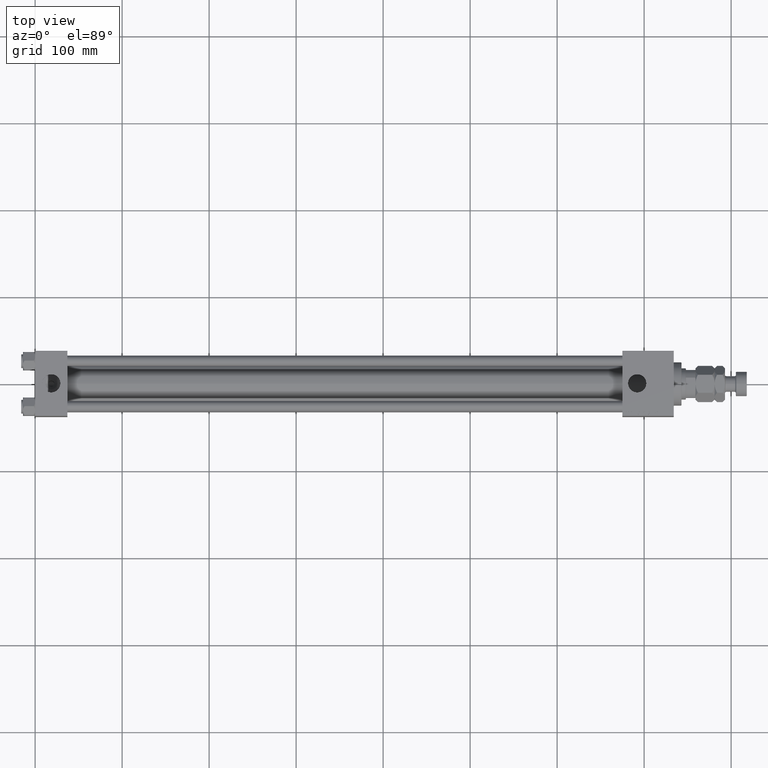
[diagram: clean part render]
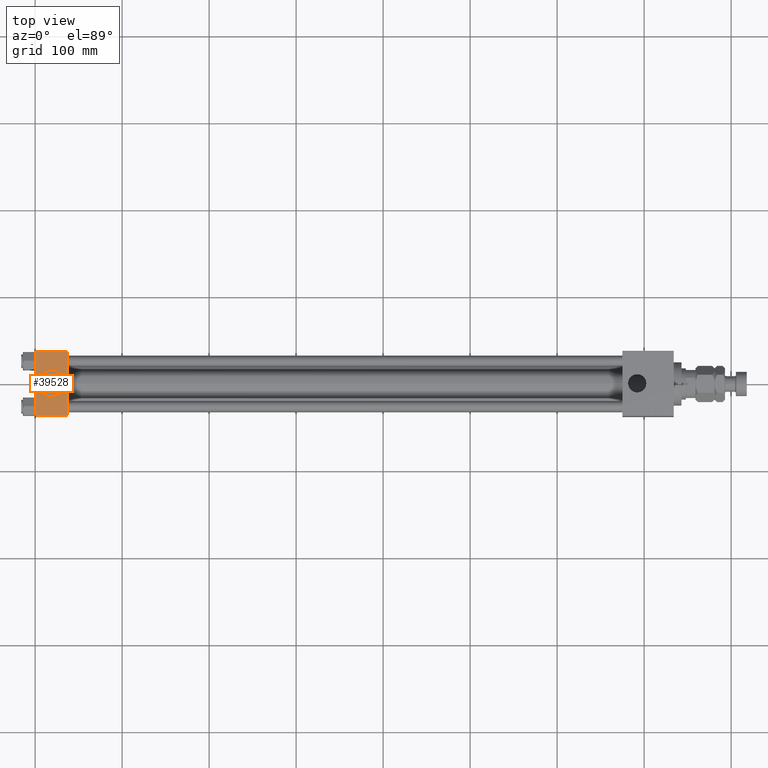
[diagram: same view with one face highlighted and labeled with its STEP entity id]
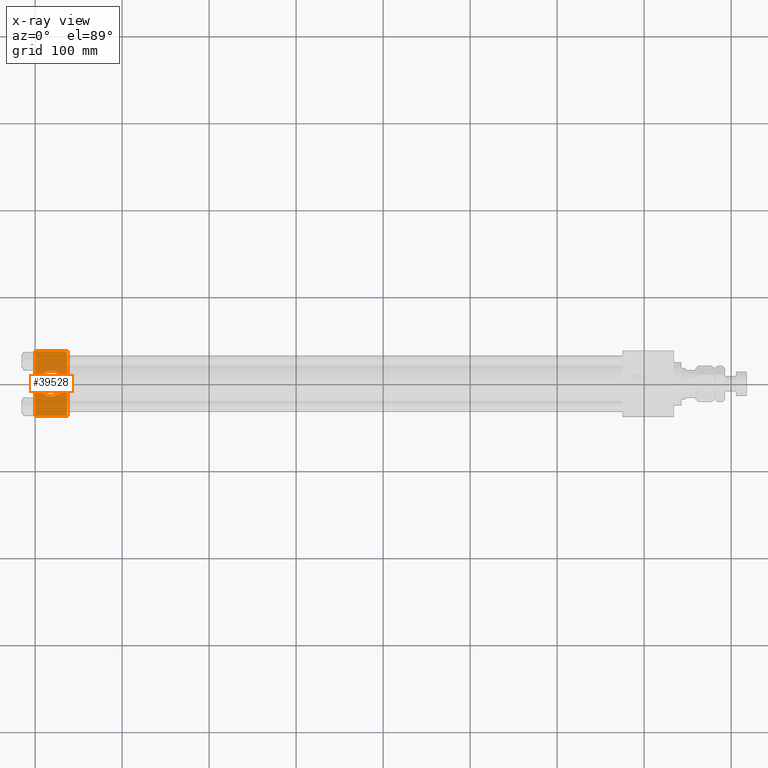
[diagram: x-ray of the same camera — body ghosted, the highlighted face saturated]
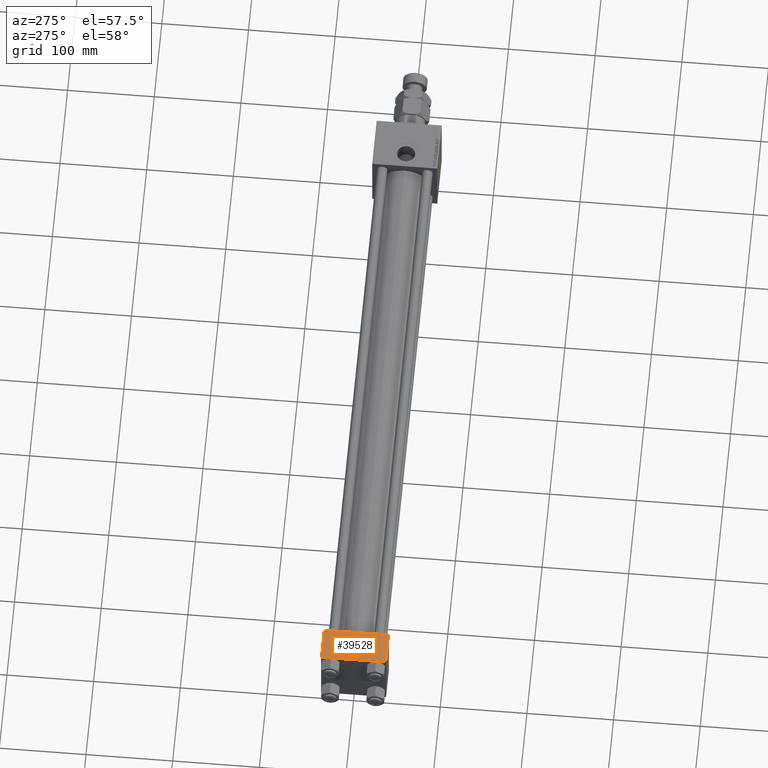
[diagram: same view with one face highlighted and labeled with its STEP entity id]
A machine part, top view. The second image highlights one B-rep face of the part: STEP entity #39528.
The next image is the same camera in x-ray: the body ghosted, the highlighted face saturated — about 0% of this face is hidden behind the body in this view.
A second angle (auxiliary view) of the same face is appended — the face is thin or edge-on in the first view.
In plain terms, the highlighted planar face has unit normal (0, 0, -1).
Its self-contained STEP definition (entity closure, byte-faithful):
#858 = DIRECTION ( 'NONE',  ( -1.000000000000000000, 0.000000000000000000, 0.000000000000000000 ) ) ;
#1669 = CARTESIAN_POINT ( 'NONE',  ( 0.000000000000000000, 37.49999999999999289, 37.50000000000000000 ) ) ;
#1882 = VERTEX_POINT ( 'NONE', #41108 ) ;
#4298 = LINE ( 'NONE', #11955, #13689 ) ;
#4979 = ORIENTED_EDGE ( 'NONE', *, *, #26579, .T. ) ;
#5833 = EDGE_CURVE ( 'NONE', #31961, #23854, #13459, .T. ) ;
#6013 = DIRECTION ( 'NONE',  ( 0.000000000000000000, 1.000000000000000000, 9.251858538542971581E-17 ) ) ;
#6526 = DIRECTION ( 'NONE',  ( 0.000000000000000000, -1.000000000000000000, -9.251858538542971581E-17 ) ) ;
#7675 = EDGE_CURVE ( 'NONE', #23854, #31961, #32911, .T. ) ;
#8284 = VECTOR ( 'NONE', #6526, 1000.000000000000000 ) ;
#8513 = VECTOR ( 'NONE', #34648, 1000.000000000000000 ) ;
#9556 = DIRECTION ( 'NONE',  ( 0.000000000000000000, 0.000000000000000000, 1.000000000000000000 ) ) ;
#9867 = CARTESIAN_POINT ( 'NONE',  ( 33.50000000000000000, -5.204170427930421283E-15, 37.50000000000000000 ) ) ;
#11955 = CARTESIAN_POINT ( 'NONE',  ( 0.000000000000000000, 36.99999999999999289, 37.50000000000000000 ) ) ;
#12952 = ORIENTED_EDGE ( 'NONE', *, *, #20941, .T. ) ;
#13459 = CIRCLE ( 'NONE', #47180, 15.00000000000000355 ) ;
#13689 = VECTOR ( 'NONE', #858, 1000.000000000000000 ) ;
#13814 = LINE ( 'NONE', #1669, #8513 ) ;
#14976 = DIRECTION ( 'NONE',  ( 0.000000000000000000, 9.251858538542971581E-17, -1.000000000000000000 ) ) ;
#17594 = VECTOR ( 'NONE', #41873, 1000.000000000000000 ) ;
#17749 = AXIS2_PLACEMENT_3D ( 'NONE', #32882, #32362, #45021 ) ;
#18680 = CARTESIAN_POINT ( 'NONE',  ( 37.00000000000000000, -37.00000000000000711, 37.49999999999999289 ) ) ;
#20090 = EDGE_CURVE ( 'NONE', #49452, #46684, #21822, .T. ) ;
#20941 = EDGE_CURVE ( 'NONE', #1882, #46684, #38453, .T. ) ;
#21822 = LINE ( 'NONE', #26571, #8284 ) ;
#22615 = PLANE ( 'NONE',  #43378 ) ;
#23682 = CARTESIAN_POINT ( 'NONE',  ( 3.499999999999997780, -3.367200229209391300E-15, 37.50000000000000000 ) ) ;
#23854 = VERTEX_POINT ( 'NONE', #23682 ) ;
#24468 = ORIENTED_EDGE ( 'NONE', *, *, #7675, .F. ) ;
#26571 = CARTESIAN_POINT ( 'NONE',  ( 37.00000000000000000, 37.49999999999999289, 37.50000000000000000 ) ) ;
#26579 = EDGE_CURVE ( 'NONE', #39595, #1882, #13814, .T. ) ;
#27347 = FACE_BOUND ( 'NONE', #48571, .T. ) ;
#31961 = VERTEX_POINT ( 'NONE', #9867 ) ;
#32362 = DIRECTION ( 'NONE',  ( 0.000000000000000000, 0.000000000000000000, 1.000000000000000000 ) ) ;
#32882 = CARTESIAN_POINT ( 'NONE',  ( 18.50000000000000000, -5.204170427930421283E-15, 37.50000000000000000 ) ) ;
#32911 = CIRCLE ( 'NONE', #17749, 15.00000000000000355 ) ;
#33035 = DIRECTION ( 'NONE',  ( 1.000000000000000000, 0.000000000000000000, 0.000000000000000000 ) ) ;
#33156 = EDGE_CURVE ( 'NONE', #49452, #39595, #4298, .T. ) ;
#34132 = CARTESIAN_POINT ( 'NONE',  ( 37.00000000000000000, -37.00000000000000711, 37.49999999999999289 ) ) ;
#34648 = DIRECTION ( 'NONE',  ( 0.000000000000000000, -1.000000000000000000, -9.251858538542971581E-17 ) ) ;
#36993 = CARTESIAN_POINT ( 'NONE',  ( 18.50000000000000000, -5.204170427930421283E-15, 37.50000000000000000 ) ) ;
#38453 = LINE ( 'NONE', #18680, #17594 ) ;
#39218 = CARTESIAN_POINT ( 'NONE',  ( 37.00000000000000000, 37.49999999999999289, 37.50000000000000000 ) ) ;
#39528 = ADVANCED_FACE ( 'NONE', ( #27347, #47404 ), #22615, .F. ) ;
#39595 = VERTEX_POINT ( 'NONE', #45628 ) ;
#41108 = CARTESIAN_POINT ( 'NONE',  ( 0.000000000000000000, -37.00000000000000711, 37.49999999999999289 ) ) ;
#41873 = DIRECTION ( 'NONE',  ( 1.000000000000000000, 0.000000000000000000, 0.000000000000000000 ) ) ;
#43378 = AXIS2_PLACEMENT_3D ( 'NONE', #39218, #14976, #6013 ) ;
#43498 = ORIENTED_EDGE ( 'NONE', *, *, #33156, .T. ) ;
#43770 = CARTESIAN_POINT ( 'NONE',  ( 37.00000000000000000, 36.99999999999999289, 37.50000000000000000 ) ) ;
#45021 = DIRECTION ( 'NONE',  ( 1.000000000000000000, 0.000000000000000000, 0.000000000000000000 ) ) ;
#45628 = CARTESIAN_POINT ( 'NONE',  ( 0.000000000000000000, 36.99999999999999289, 37.50000000000000000 ) ) ;
#46116 = ORIENTED_EDGE ( 'NONE', *, *, #5833, .F. ) ;
#46684 = VERTEX_POINT ( 'NONE', #34132 ) ;
#47180 = AXIS2_PLACEMENT_3D ( 'NONE', #36993, #9556, #33035 ) ;
#47404 = FACE_OUTER_BOUND ( 'NONE', #50551, .T. ) ;
#48571 = EDGE_LOOP ( 'NONE', ( #46116, #24468 ) ) ;
#49452 = VERTEX_POINT ( 'NONE', #43770 ) ;
#50551 = EDGE_LOOP ( 'NONE', ( #4979, #12952, #52177, #43498 ) ) ;
#52177 = ORIENTED_EDGE ( 'NONE', *, *, #20090, .F. ) ;